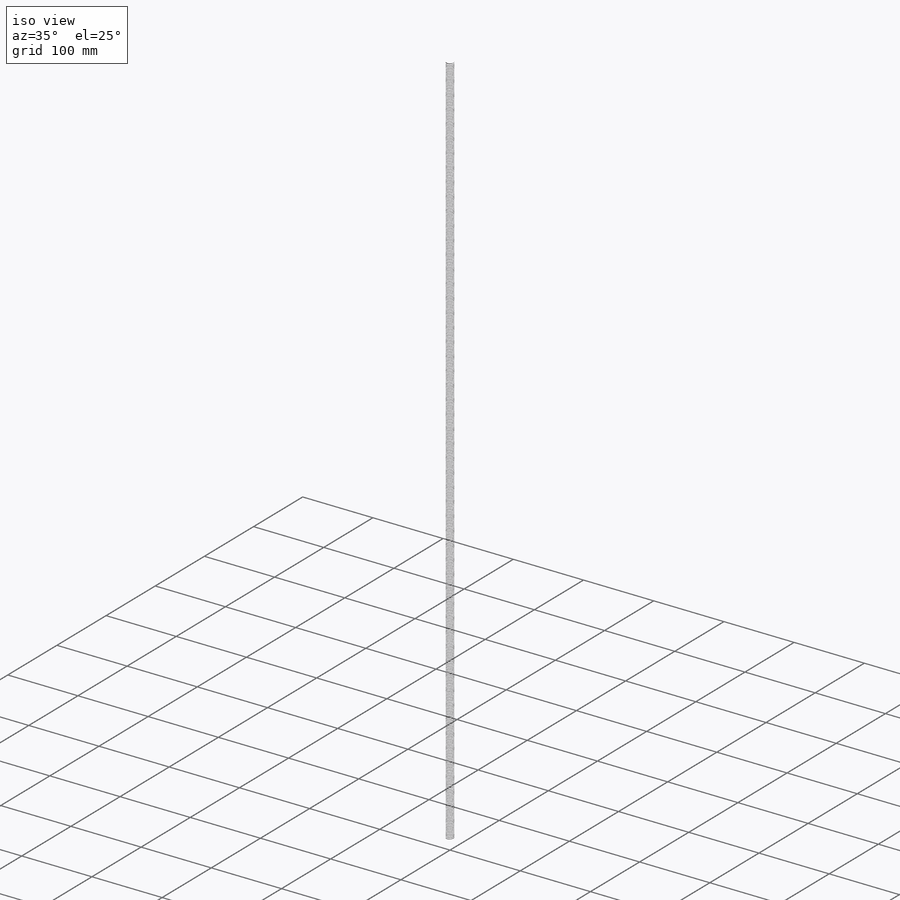
[diagram: iso view]
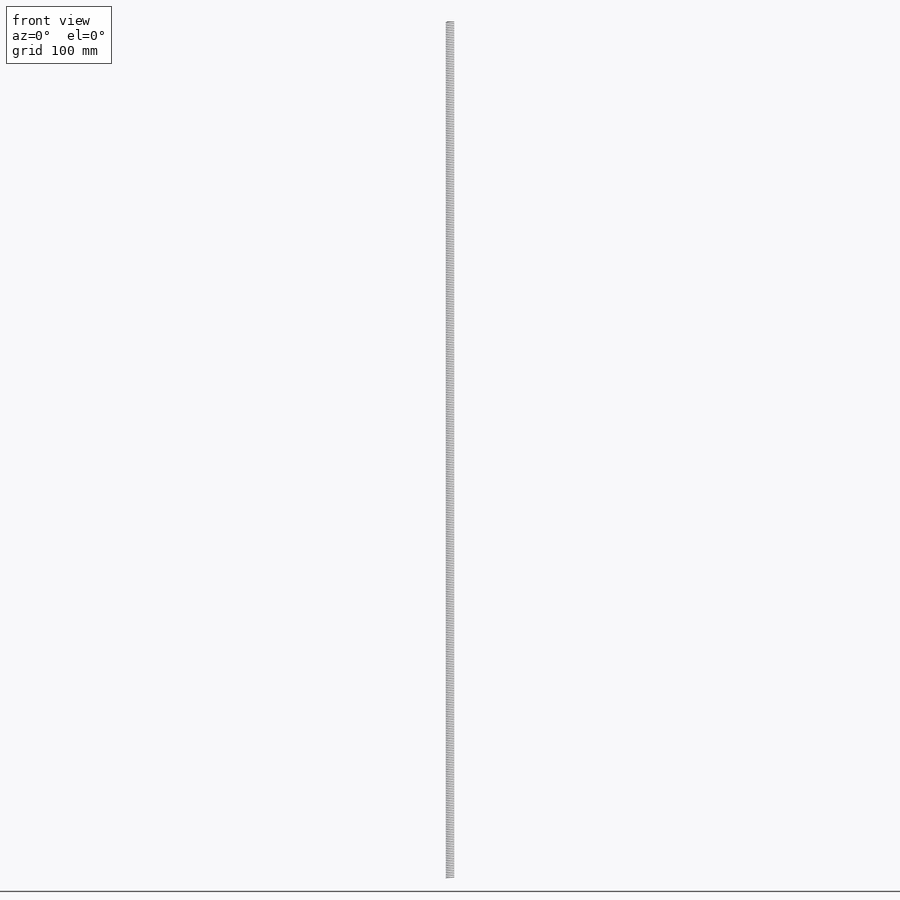
[diagram: front view]
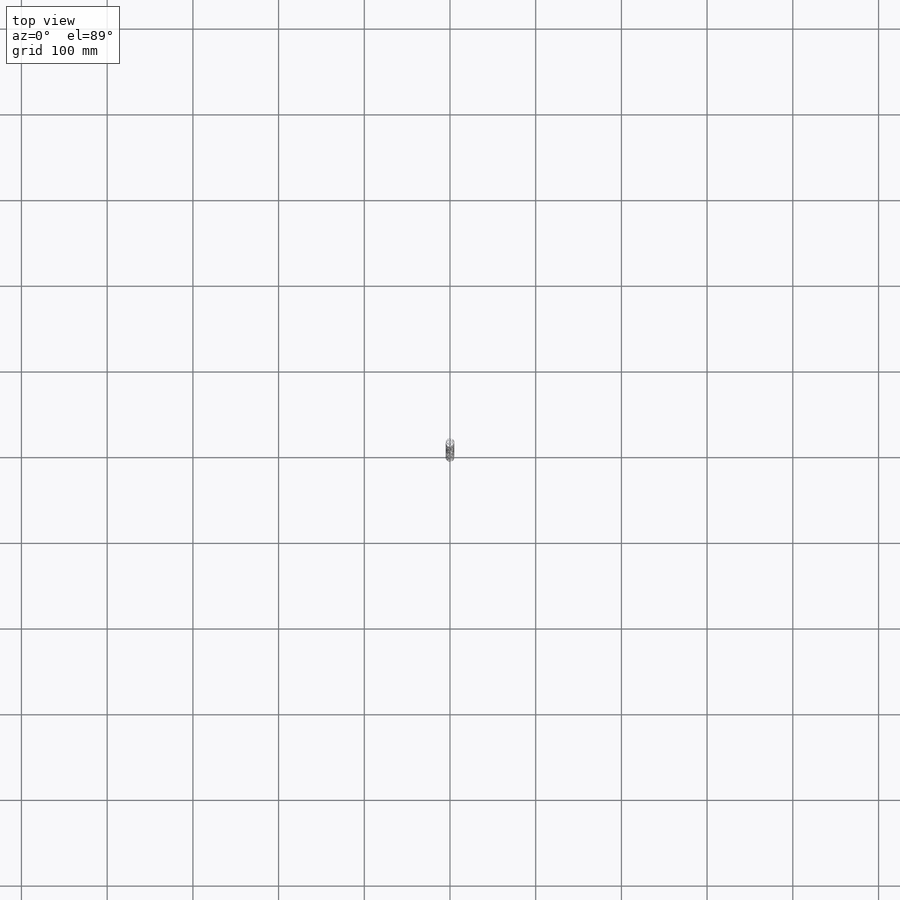
[diagram: top view]
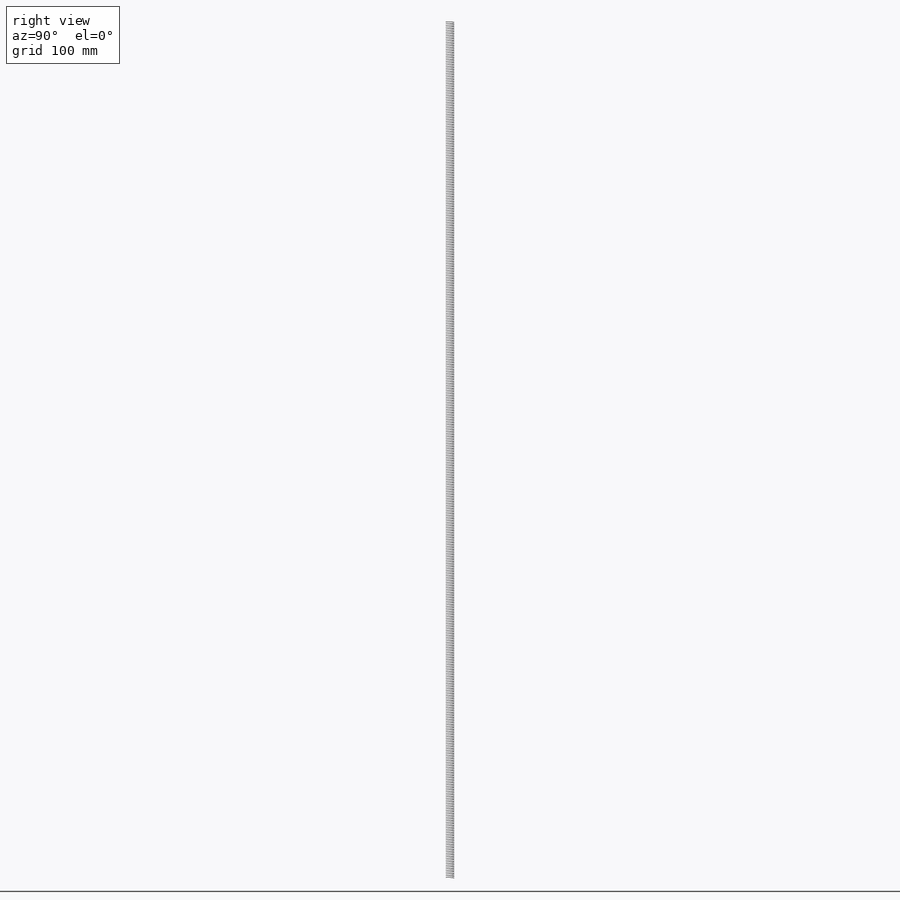
[diagram: right view]
SOLIDWORKS PART (.sldprt)
format: sldprt  version: not decoded by parser v0  size: 6,102,528 bytes
history: native  units: mm
features: plane x3, sketch x3, material x1, extrude x1, helix x1, sweep x1 (+9 scaffold rows collapsed)
feature tree (19):
  scaffold x9  (default folders/planes/origin — collapsed)
  material  "Materiale <non specificato>"
  plane  "Piano frontale"
  plane  "Piano superiore"
  plane  "Piano destro"
  sketch  "Schizzo1"  dims[D1=10.0mm]
  extrude  "Estrusione-Estrusione2"  Depth=1000mm
  sketch  "Schizzo5"  dims[D1=10.0mm]
  helix  "Elica/Spirale2"  Pitch=1100mm
  sketch  "Schizzo8"  dims[D1=~118.759907deg]
  sweep  "Taglia-Sweep2"
decode coverage: 5 of 6 modeling features carry decoded parameters
note: ~ marks probable driven/reference dimensions
note: suppression state not decoded; provenance and decode notes live in map.json
